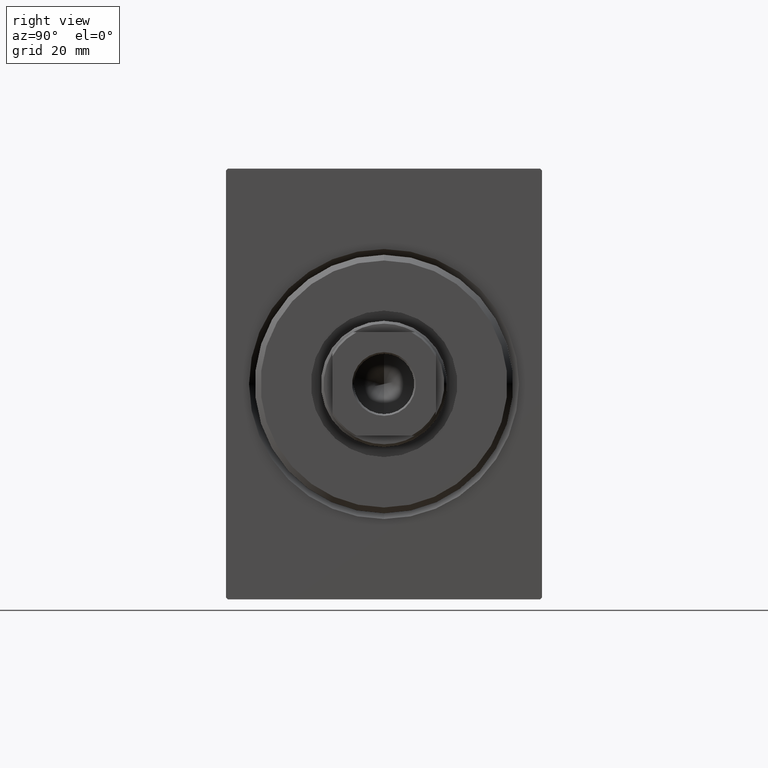
[diagram: clean part render]
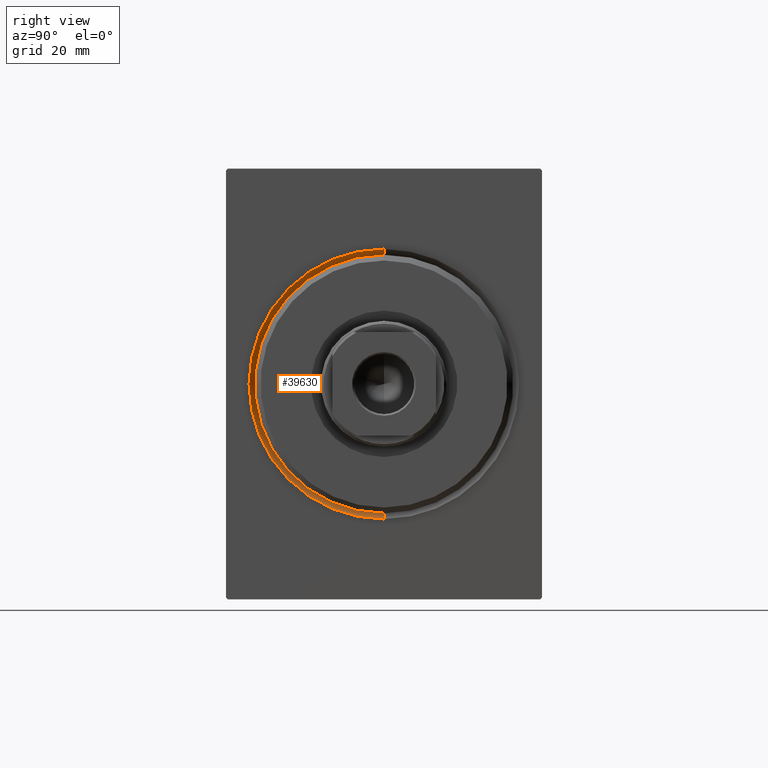
[diagram: same view with one face highlighted and labeled with its STEP entity id]
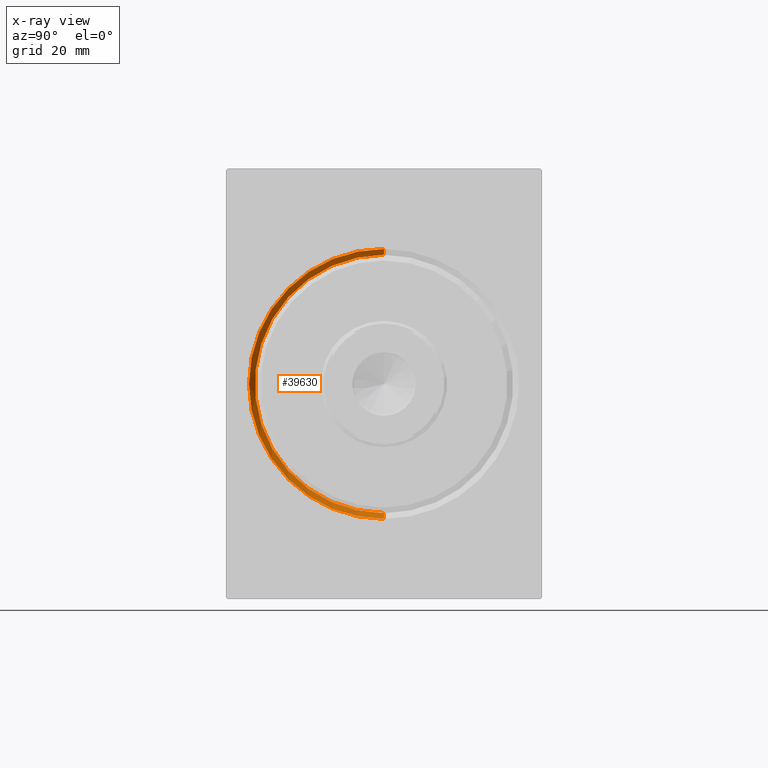
[diagram: x-ray of the same camera — body ghosted, the highlighted face saturated]
A machine part, right view. The second image highlights one B-rep face of the part: STEP entity #39630.
The next image is the same camera in x-ray: the body ghosted, the highlighted face saturated — about 0% of this face is hidden behind the body in this view.
In plain terms, the highlighted conical surface has half-angle 45 deg.
Its self-contained STEP definition (entity closure, byte-faithful):
#210 = VERTEX_POINT ( 'NONE', #18046 ) ;
#3474 = EDGE_CURVE ( 'NONE', #27486, #210, #39638, .T. ) ;
#6725 = ORIENTED_EDGE ( 'NONE', *, *, #17357, .F. ) ;
#6778 = CONICAL_SURFACE ( 'NONE', #39917, 22.50000000000000355, 0.7853981633974482790 ) ;
#7236 = EDGE_CURVE ( 'NONE', #27486, #36808, #12655, .T. ) ;
#8562 = DIRECTION ( 'NONE',  ( 0.000000000000000000, 0.000000000000000000, 1.000000000000000000 ) ) ;
#8892 = ORIENTED_EDGE ( 'NONE', *, *, #7236, .T. ) ;
#9875 = DIRECTION ( 'NONE',  ( 0.000000000000000000, 0.000000000000000000, -1.000000000000000000 ) ) ;
#9939 = VECTOR ( 'NONE', #34706, 1000.000000000000114 ) ;
#11531 = AXIS2_PLACEMENT_3D ( 'NONE', #26533, #33022, #9875 ) ;
#12655 = LINE ( 'NONE', #37958, #9939 ) ;
#15331 = CARTESIAN_POINT ( 'NONE',  ( 1.000000000000000888, 0.000000000000000000, 0.000000000000000000 ) ) ;
#17357 = EDGE_CURVE ( 'NONE', #34774, #36808, #30197, .T. ) ;
#18046 = CARTESIAN_POINT ( 'NONE',  ( 1.000000000000000888, 2.755455298081545172E-15, -22.50000000000000355 ) ) ;
#19664 = ORIENTED_EDGE ( 'NONE', *, *, #28512, .F. ) ;
#20582 = CARTESIAN_POINT ( 'NONE',  ( 1.000000000000000888, 0.000000000000000000, 22.50000000000000355 ) ) ;
#24533 = ORIENTED_EDGE ( 'NONE', *, *, #3474, .F. ) ;
#24642 = DIRECTION ( 'NONE',  ( -1.000000000000000000, 0.000000000000000000, 0.000000000000000000 ) ) ;
#26533 = CARTESIAN_POINT ( 'NONE',  ( 0.000000000000000000, 0.000000000000000000, 0.000000000000000000 ) ) ;
#27486 = VERTEX_POINT ( 'NONE', #20582 ) ;
#28512 = EDGE_CURVE ( 'NONE', #210, #34774, #36140, .T. ) ;
#28628 = CARTESIAN_POINT ( 'NONE',  ( 0.000000000000000000, 2.877919977996280715E-15, -23.50000000000000355 ) ) ;
#29447 = DIRECTION ( 'NONE',  ( -0.7071067811865474617, 8.659560562354932858E-17, -0.7071067811865474617 ) ) ;
#29573 = CARTESIAN_POINT ( 'NONE',  ( 0.000000000000000000, 0.000000000000000000, 23.50000000000000355 ) ) ;
#29893 = AXIS2_PLACEMENT_3D ( 'NONE', #15331, #24642, #31136 ) ;
#30197 = CIRCLE ( 'NONE', #11531, 23.50000000000000355 ) ;
#30795 = EDGE_LOOP ( 'NONE', ( #19664, #24533, #8892, #6725 ) ) ;
#31136 = DIRECTION ( 'NONE',  ( 0.000000000000000000, 0.000000000000000000, -1.000000000000000000 ) ) ;
#31916 = FACE_OUTER_BOUND ( 'NONE', #30795, .T. ) ;
#32447 = VECTOR ( 'NONE', #29447, 1000.000000000000114 ) ;
#33022 = DIRECTION ( 'NONE',  ( 1.000000000000000000, 0.000000000000000000, 0.000000000000000000 ) ) ;
#33935 = DIRECTION ( 'NONE',  ( -1.000000000000000000, 0.000000000000000000, 0.000000000000000000 ) ) ;
#34706 = DIRECTION ( 'NONE',  ( -0.7071067811865474617, 0.000000000000000000, 0.7071067811865474617 ) ) ;
#34774 = VERTEX_POINT ( 'NONE', #28628 ) ;
#36140 = LINE ( 'NONE', #40043, #32447 ) ;
#36808 = VERTEX_POINT ( 'NONE', #29573 ) ;
#37958 = CARTESIAN_POINT ( 'NONE',  ( 1.000000000000000888, 0.000000000000000000, 22.50000000000000355 ) ) ;
#38171 = CARTESIAN_POINT ( 'NONE',  ( 1.000000000000000888, 0.000000000000000000, 0.000000000000000000 ) ) ;
#39630 = ADVANCED_FACE ( 'NONE', ( #31916 ), #6778, .F. ) ;
#39638 = CIRCLE ( 'NONE', #29893, 22.50000000000000355 ) ;
#39917 = AXIS2_PLACEMENT_3D ( 'NONE', #38171, #33935, #8562 ) ;
#40043 = CARTESIAN_POINT ( 'NONE',  ( 1.000000000000000888, 2.755455298081545172E-15, -22.50000000000000355 ) ) ;